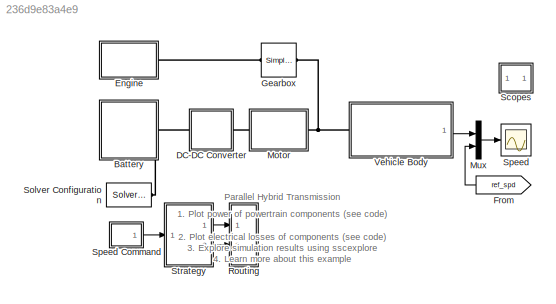
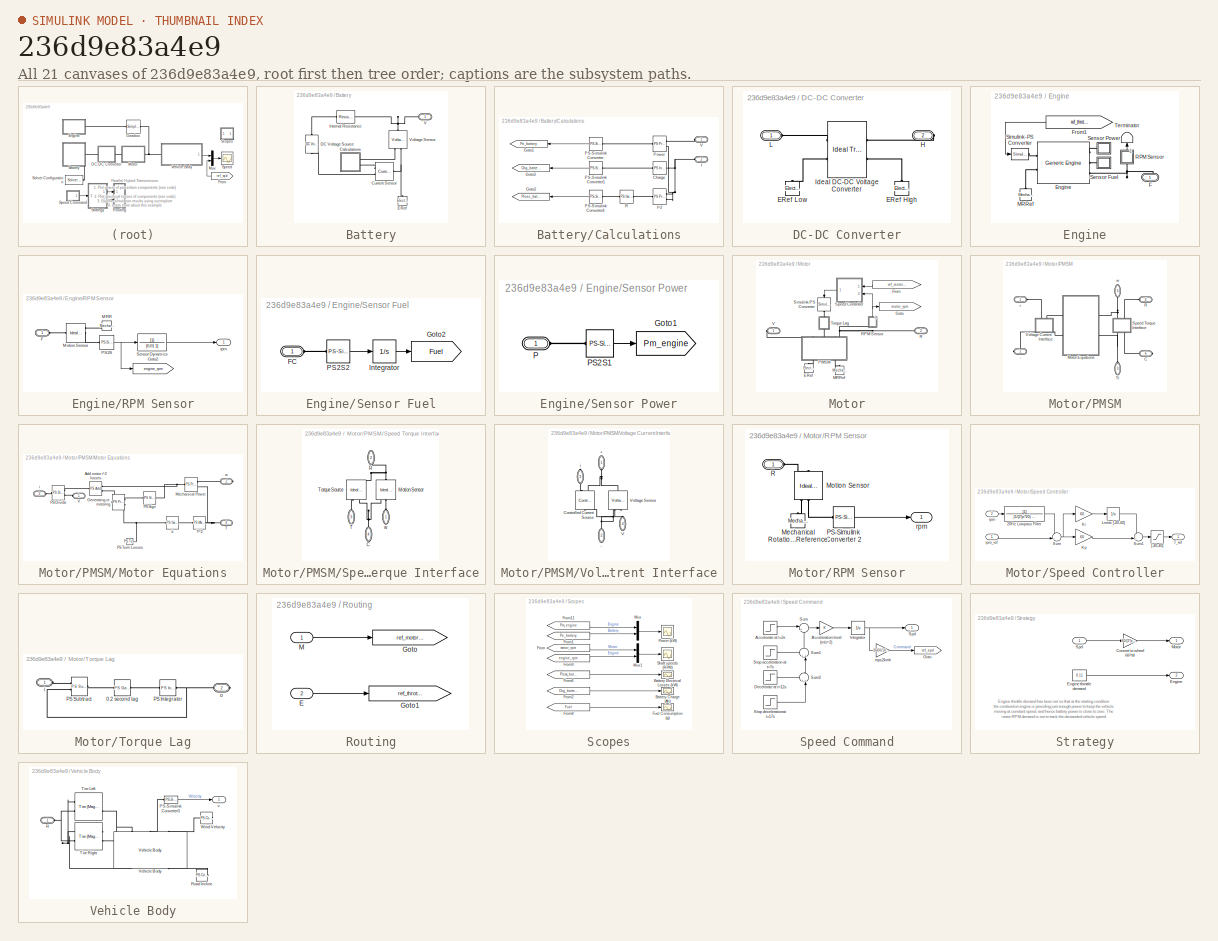
[diagram: thumbnail index - all 21 canvases of the model, root first then tree order]
MODEL slx_236d9e83a4e9
KIND model
CONFIG AbsTol = 1e-3
CONFIG EnableMultiTasking = on
CONFIG FixedStep = auto
CONFIG MaxStep = auto
CONFIG MinStep = auto
CONFIG RelTol = 1e-3
CONFIG SampleTimeConstraint = Unconstrained
CONFIG Solver = VariableStepAuto
CONFIG SolverName = VariableStepAuto
CONFIG StartTime = 0.0
CONFIG StopTime = 20
WORKSPACE source: MATLAB code (in-file)
WORKSPACE v0 = 15
WORKSPACE wheel_radius = 0.3
WORKSPACE k = 1e-2  (= 0.01)
WORKSPACE t_torque = 0.02
WORKSPACE gear_ratio = 4.27
BLOCK [SubSystem] Battery
  Ports = [0, 0, 0, 0, 0, 1]
  RequestExecContextInheritance = off
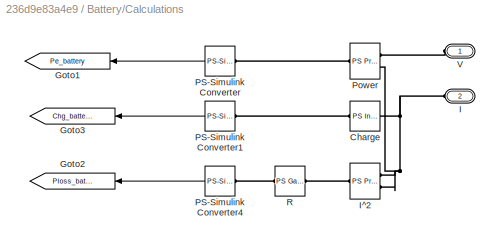
BLOCK [SubSystem] Battery/Calculations
  Ports = [0, 0, 0, 0, 0, 2]
  RequestExecContextInheritance = off
BLOCK [Reference] Battery/Calculations/Charge  REF=fl_lib/Physical Signals/Linear Operators/PS Integrator
  Ports = [0, 0, 0, 0, 0, 1, 1]
  SourceBlock = fl_lib/Physical Signals/Linear Operators/PS Integrator
  SourceProductBaseCode = SS
  SourceProductName = Simscape
  SourceType = PS Integrator
BLOCK [Goto] Battery/Calculations/Goto1
  GotoTag = Pe_battery
  TagVisibility = global
BLOCK [Goto] Battery/Calculations/Goto2
  GotoTag = Ploss_battery
  TagVisibility = global
BLOCK [Goto] Battery/Calculations/Goto3
  GotoTag = Chg_battery
  TagVisibility = global
BLOCK [PMIOPort] Battery/Calculations/I
  Port = 2
  Side = Left
BLOCK [Reference] Battery/Calculations/I^2  REF=fl_lib/Physical Signals/Functions/PS Product
  Ports = [0, 0, 0, 0, 0, 2, 1]
  SourceBlock = fl_lib/Physical Signals/Functions/PS Product
  SourceProductBaseCode = SS
  SourceProductName = Simscape
  SourceType = PS Product
BLOCK [Reference] Battery/Calculations/PS-Simulink Converter  REF=nesl_utility/PS-Simulink
Converter
  Ports = [0, 1, 0, 0, 0, 1]
  SourceBlock = nesl_utility/PS-Simulink\nConverter
  SourceProductBaseCode = SS
  SourceProductName = Simscape
  SourceType = PS-Simulink\nConverter
BLOCK [Reference] Battery/Calculations/PS-Simulink Converter1  REF=nesl_utility/PS-Simulink
Converter
  Ports = [0, 1, 0, 0, 0, 1]
  SourceBlock = nesl_utility/PS-Simulink\nConverter
  SourceProductBaseCode = SS
  SourceProductName = Simscape
  SourceType = PS-Simulink\nConverter
BLOCK [Reference] Battery/Calculations/PS-Simulink Converter4  REF=nesl_utility/PS-Simulink
Converter
  Ports = [0, 1, 0, 0, 0, 1]
  SourceBlock = nesl_utility/PS-Simulink\nConverter
  SourceProductBaseCode = SS
  SourceProductName = Simscape
  SourceType = PS-Simulink\nConverter
BLOCK [Reference] Battery/Calculations/Power  REF=fl_lib/Physical Signals/Functions/PS Product
  Ports = [0, 0, 0, 0, 0, 2, 1]
  SourceBlock = fl_lib/Physical Signals/Functions/PS Product
  SourceProductBaseCode = SS
  SourceProductName = Simscape
  SourceType = PS Product
BLOCK [Reference] Battery/Calculations/R  REF=fl_lib/Physical Signals/Functions/PS Gain
  Ports = [0, 0, 0, 0, 0, 1, 1]
  SourceBlock = fl_lib/Physical Signals/Functions/PS Gain
  SourceProductBaseCode = SS
  SourceProductName = Simscape
  SourceType = PS Gain
BLOCK [PMIOPort] Battery/Calculations/V
  Side = Left
BLOCK [Reference] Battery/Current Sensor  REF=fl_lib/Electrical/Electrical Sensors/Current Sensor
  Ports = [0, 0, 0, 0, 0, 1, 2]
  SourceBlock = fl_lib/Electrical/Electrical Sensors/Current Sensor
  SourceProductBaseCode = SS
  SourceProductName = Simscape
  SourceType = Current Sensor
BLOCK [Reference] Battery/DC Voltage Source  REF=fl_lib/Electrical/Electrical Sources/DC Voltage Source
  Ports = [0, 0, 0, 0, 0, 1, 1]
  SourceBlock = fl_lib/Electrical/Electrical Sources/DC Voltage Source
  SourceProductBaseCode = SS
  SourceProductName = Simscape
  SourceType = DC Voltage Source
BLOCK [Reference] Battery/ERef  REF=fl_lib/Electrical/Electrical Elements/Electrical Reference
  Ports = [0, 0, 0, 0, 0, 1]
  SourceBlock = fl_lib/Electrical/Electrical Elements/Electrical Reference
  SourceProductBaseCode = SS
  SourceProductName = Simscape
  SourceType = Electrical Reference
BLOCK [Reference] Battery/Internal Resistance  REF=fl_lib/Electrical/Electrical Elements/Resistor
  Ports = [0, 0, 0, 0, 0, 1, 1]
  SourceBlock = fl_lib/Electrical/Electrical Elements/Resistor
  SourceProductBaseCode = SS
  SourceProductName = Simscape
  SourceType = Resistor
BLOCK [PMIOPort] Battery/V
  Side = Left
BLOCK [Reference] Battery/Voltage Sensor  REF=fl_lib/Electrical/Electrical Sensors/Voltage Sensor
  Ports = [0, 0, 0, 0, 0, 1, 2]
  SourceBlock = fl_lib/Electrical/Electrical Sensors/Voltage Sensor
  SourceProductBaseCode = SS
  SourceProductName = Simscape
  SourceType = Voltage Sensor
BLOCK [SubSystem] DC-DC Converter
  Ports = [0, 0, 0, 0, 0, 1, 1]
  RequestExecContextInheritance = off
BLOCK [Reference] DC-DC Converter/ERef High  REF=fl_lib/Electrical/Electrical Elements/Electrical Reference
  Ports = [0, 0, 0, 0, 0, 1]
  SourceBlock = fl_lib/Electrical/Electrical Elements/Electrical Reference
  SourceProductBaseCode = SS
  SourceProductName = Simscape
  SourceType = Electrical Reference
BLOCK [Reference] DC-DC Converter/ERef Low  REF=fl_lib/Electrical/Electrical Elements/Electrical Reference
  Ports = [0, 0, 0, 0, 0, 1]
  SourceBlock = fl_lib/Electrical/Electrical Elements/Electrical Reference
  SourceProductBaseCode = SS
  SourceProductName = Simscape
  SourceType = Electrical Reference
BLOCK [PMIOPort] DC-DC Converter/H
  Port = 2
  Side = Right
BLOCK [Reference] DC-DC Converter/Ideal DC-DC Voltage Converter  REF=fl_lib/Electrical/Electrical Elements/Ideal Transformer
  Ports = [0, 0, 0, 0, 0, 2, 2]
  SourceBlock = fl_lib/Electrical/Electrical Elements/Ideal Transformer
  SourceProductBaseCode = SS
  SourceProductName = Simscape
  SourceType = Ideal Transformer
BLOCK [PMIOPort] DC-DC Converter/L
  Side = Left
  Tag = PMCPort
BLOCK [SubSystem] Engine
  Ports = [0, 0, 0, 0, 0, 0, 1]
  RequestExecContextInheritance = off
BLOCK [Reference] Engine/Engine  REF=sdl_lib/Engines/Generic Engine
  Ports = [0, 0, 0, 0, 0, 2, 3]
  SourceBlock = sdl_lib/Engines/Generic Engine
  SourceProductBaseCode = LD
  SourceProductName = Simscape Driveline
  SourceType = Generic Engine
BLOCK [PMIOPort] Engine/F
  Side = Right
BLOCK [From] Engine/From1
  GotoTag = ref_throttle
  TagVisibility = global
BLOCK [Reference] Engine/MRRef  REF=fl_lib/Mechanical/Rotational Elements/Mechanical
Rotational Reference
  Ports = [0, 0, 0, 0, 0, 1]
  SourceBlock = fl_lib/Mechanical/Rotational Elements/Mechanical\nRotational Reference
  SourceProductBaseCode = SS
  SourceProductName = Simscape
  SourceType = Mechanical\nRotational Reference
BLOCK [SubSystem] Engine/RPM Sensor
  Ports = [0, 1, 0, 0, 0, 1]
  RequestExecContextInheritance = off
BLOCK [PMIOPort] Engine/RPM Sensor/F
  Side = Left
BLOCK [Goto] Engine/RPM Sensor/Goto2
  GotoTag = engine_rpm
  TagVisibility = global
BLOCK [Reference] Engine/RPM Sensor/MRR  REF=fl_lib/Mechanical/Rotational Elements/Mechanical
Rotational Reference
  Ports = [0, 0, 0, 0, 0, 1]
  SourceBlock = fl_lib/Mechanical/Rotational Elements/Mechanical\nRotational Reference
  SourceProductBaseCode = SS
  SourceProductName = Simscape
  SourceType = Mechanical\nRotational Reference
BLOCK [Reference] Engine/RPM Sensor/Motion Sensor  REF=fl_lib/Mechanical/Mechanical Sensors/Ideal Rotational
Motion Sensor
  Ports = [0, 0, 0, 0, 0, 1, 3]
  SourceBlock = fl_lib/Mechanical/Mechanical Sensors/Ideal Rotational\nMotion Sensor
  SourceProductBaseCode = SS
  SourceProductName = Simscape
  SourceType = Ideal Rotational\nMotion Sensor
BLOCK [Reference] Engine/RPM Sensor/PS2S  REF=nesl_utility/PS-Simulink
Converter
  Ports = [0, 1, 0, 0, 0, 1]
  SourceBlock = nesl_utility/PS-Simulink\nConverter
  SourceProductBaseCode = SS
  SourceProductName = Simscape
  SourceType = PS-Simulink\nConverter
BLOCK [TransferFcn] Engine/RPM Sensor/Sensor Dynamics
  Denominator = [0.01 1]
BLOCK [Outport] Engine/RPM Sensor/rpm
  IconDisplay = Port number
  VectorParamsAs1DForOutWhenUnconnected = off
BLOCK [SubSystem] Engine/Sensor Fuel
  Ports = [0, 0, 0, 0, 0, 1]
  RequestExecContextInheritance = off
BLOCK [PMIOPort] Engine/Sensor Fuel/FC
  Side = Left
BLOCK [Goto] Engine/Sensor Fuel/Goto2
  GotoTag = Fuel
  TagVisibility = global
BLOCK [Integrator] Engine/Sensor Fuel/Integrator
  Ports = [1, 1]
BLOCK [Reference] Engine/Sensor Fuel/PS2S2  REF=nesl_utility/PS-Simulink
Converter
  Ports = [0, 1, 0, 0, 0, 1]
  SourceBlock = nesl_utility/PS-Simulink\nConverter
  SourceProductBaseCode = SS
  SourceProductName = Simscape
  SourceType = PS-Simulink\nConverter
BLOCK [SubSystem] Engine/Sensor Power
  Ports = [0, 0, 0, 0, 0, 1]
  RequestExecContextInheritance = off
BLOCK [Goto] Engine/Sensor Power/Goto1
  GotoTag = Pm_engine
  TagVisibility = global
BLOCK [PMIOPort] Engine/Sensor Power/P
  Side = Left
BLOCK [Reference] Engine/Sensor Power/PS2S1  REF=nesl_utility/PS-Simulink
Converter
  Ports = [0, 1, 0, 0, 0, 1]
  SourceBlock = nesl_utility/PS-Simulink\nConverter
  SourceProductBaseCode = SS
  SourceProductName = Simscape
  SourceType = PS-Simulink\nConverter
BLOCK [Reference] Engine/Simulink-PS Converter  REF=nesl_utility/Simulink-PS
Converter
  Ports = [1, 0, 0, 0, 0, 0, 1]
  SourceBlock = nesl_utility/Simulink-PS\nConverter
  SourceProductBaseCode = SS
  SourceProductName = Simscape
  SourceType = Simulink-PS\nConverter
BLOCK [Terminator] Engine/Terminator
BLOCK [From] From
  GotoTag = ref_spd
  TagVisibility = global
BLOCK [Reference] Gearbox  REF=sdl_lib/Gears/Simple Gear
  Ports = [0, 0, 0, 0, 0, 1, 1]
  SourceBlock = sdl_lib/Gears/Simple Gear
  SourceProductBaseCode = LD
  SourceProductName = Simscape Driveline
  SourceType = Simple Gear
BLOCK [SubSystem] Motor
  Ports = [0, 0, 0, 0, 0, 1, 1]
  RequestExecContextInheritance = off
BLOCK [Reference] Motor/ERef  REF=fl_lib/Electrical/Electrical Elements/Electrical Reference
  Ports = [0, 0, 0, 0, 0, 1]
  SourceBlock = fl_lib/Electrical/Electrical Elements/Electrical Reference
  SourceProductBaseCode = SS
  SourceProductName = Simscape
  SourceType = Electrical Reference
BLOCK [From] Motor/From
  GotoTag = ref_motor_rpm
  TagVisibility = global
BLOCK [Goto] Motor/Goto
  GotoTag = motor_rpm
  TagVisibility = global
BLOCK [Reference] Motor/MRRef  REF=fl_lib/Mechanical/Rotational Elements/Mechanical
Rotational Reference
  Ports = [0, 0, 0, 0, 0, 1]
  SourceBlock = fl_lib/Mechanical/Rotational Elements/Mechanical\nRotational Reference
  SourceProductBaseCode = SS
  SourceProductName = Simscape
  SourceType = Mechanical\nRotational Reference
BLOCK [SubSystem] Motor/PMSM
  Ports = [0, 0, 0, 0, 0, 3, 3]
  RequestExecContextInheritance = off
BLOCK [PMIOPort] Motor/PMSM/+
  Side = Left
BLOCK [PMIOPort] Motor/PMSM/-
  Port = 2
  Side = Right
BLOCK [PMIOPort] Motor/PMSM/C
  Port = 6
  Side = Right
BLOCK [SubSystem] Motor/PMSM/Motor Equations
  Ports = [0, 0, 0, 0, 0, 2, 2]
  RequestExecContextInheritance = off
BLOCK [Reference] Motor/PMSM/Motor Equations/Add motor i^2 losses  REF=fl_lib/Physical Signals/Functions/PS Add
  Ports = [0, 0, 0, 0, 0, 2, 1]
  SourceBlock = fl_lib/Physical Signals/Functions/PS Add
  SourceProductBaseCode = SS
  SourceProductName = Simscape
  SourceType = PS Add
BLOCK [Reference] Motor/PMSM/Motor Equations/Generating or motoring  REF=fl_lib/Physical Signals/Functions/PS Product
  Ports = [0, 0, 0, 0, 0, 2, 1]
  SourceBlock = fl_lib/Physical Signals/Functions/PS Product
  SourceProductBaseCode = SS
  SourceProductName = Simscape
  SourceType = PS Product
BLOCK [Reference] Motor/PMSM/Motor Equations/Mechanical Power  REF=fl_lib/Physical Signals/Functions/PS Product
  Ports = [0, 0, 0, 0, 0, 2, 1]
  SourceBlock = fl_lib/Physical Signals/Functions/PS Product
  SourceProductBaseCode = SS
  SourceProductName = Simscape
  SourceType = PS Product
BLOCK [Reference] Motor/PMSM/Motor Equations/PS Divide  REF=fl_lib/Physical Signals/Functions/PS Divide
  Ports = [0, 0, 0, 0, 0, 2, 1]
  SourceBlock = fl_lib/Physical Signals/Functions/PS Divide
  SourceProductBaseCode = SS
  SourceProductName = Simscape
  SourceType = PS Divide
BLOCK [Reference] Motor/PMSM/Motor Equations/PS Sign  REF=fl_lib/Physical Signals/Nonlinear Operators/PS Sign
  Ports = [0, 0, 0, 0, 0, 1, 1]
  SourceBlock = fl_lib/Physical Signals/Nonlinear Operators/PS Sign
  SourceProductBaseCode = SS
  SourceProductName = Simscape
  SourceType = PS Sign
BLOCK [Reference] Motor/PMSM/Motor Equations/PS Term Losses  REF=fl_lib/Physical Signals/Sinks/PS Terminator
  Ports = [0, 0, 0, 0, 0, 1]
  SourceBlock = fl_lib/Physical Signals/Sinks/PS Terminator
  SourceProductBaseCode = SS
  SourceProductName = Simscape
  SourceType = PS Terminator
BLOCK [PMIOPort] Motor/PMSM/Motor Equations/T
  Port = 4
  Side = Right
BLOCK [Reference] Motor/PMSM/Motor Equations/T^2  REF=fl_lib/Physical Signals/Functions/PS Math Function
  Ports = [0, 0, 0, 0, 0, 1, 1]
  SourceBlock = fl_lib/Physical Signals/Functions/PS Math Function
  SourceProductBaseCode = SS
  SourceProductName = Simscape
  SourceType = PS Math Function
BLOCK [PMIOPort] Motor/PMSM/Motor Equations/V
  Side = Left
BLOCK [PMIOPort] Motor/PMSM/Motor Equations/i
  Port = 3
  Side = Left
BLOCK [Reference] Motor/PMSM/Motor Equations/k  REF=fl_lib/Physical Signals/Functions/PS Gain
  Ports = [0, 0, 0, 0, 0, 1, 1]
  SourceBlock = fl_lib/Physical Signals/Functions/PS Gain
  SourceProductBaseCode = SS
  SourceProductName = Simscape
  SourceType = PS Gain
BLOCK [PMIOPort] Motor/PMSM/Motor Equations/w
  Port = 2
  Side = Right
BLOCK [PMIOPort] Motor/PMSM/R
  Port = 4
  Side = Left
BLOCK [SubSystem] Motor/PMSM/Speed Torque Interface
  Ports = [0, 0, 0, 0, 0, 2, 2]
  RequestExecContextInheritance = off
BLOCK [PMIOPort] Motor/PMSM/Speed Torque Interface/C
  Port = 4
  Side = Right
BLOCK [Reference] Motor/PMSM/Speed Torque Interface/Motion Sensor  REF=fl_lib/Mechanical/Mechanical Sensors/Ideal Rotational
Motion Sensor
  Ports = [0, 0, 0, 0, 0, 1, 3]
  SourceBlock = fl_lib/Mechanical/Mechanical Sensors/Ideal Rotational\nMotion Sensor
  SourceProductBaseCode = SS
  SourceProductName = Simscape
  SourceType = Ideal Rotational\nMotion Sensor
BLOCK [PMIOPort] Motor/PMSM/Speed Torque Interface/R
  Port = 2
  Side = Left
BLOCK [PMIOPort] Motor/PMSM/Speed Torque Interface/T
  Port = 3
  Side = Right
BLOCK [Reference] Motor/PMSM/Speed Torque Interface/Torque Source  REF=fl_lib/Mechanical/Mechanical Sources/Ideal Torque Source
  Ports = [0, 0, 0, 0, 0, 1, 2]
  SourceBlock = fl_lib/Mechanical/Mechanical Sources/Ideal Torque Source
  SourceProductBaseCode = SS
  SourceProductName = Simscape
  SourceType = Ideal Torque Source
BLOCK [PMIOPort] Motor/PMSM/Speed Torque Interface/w
  Side = Left
BLOCK [PMIOPort] Motor/PMSM/Tr
  Port = 3
  Side = Left
BLOCK [SubSystem] Motor/PMSM/Voltage Current Interface
  Ports = [0, 0, 0, 0, 0, 2, 2]
  RequestExecContextInheritance = off
BLOCK [PMIOPort] Motor/PMSM/Voltage Current Interface/+
  Side = Left
BLOCK [PMIOPort] Motor/PMSM/Voltage Current Interface/-
  Port = 2
  Side = Right
BLOCK [Reference] Motor/PMSM/Voltage Current Interface/Controlled Current Source  REF=fl_lib/Electrical/Electrical Sources/Controlled Current
Source
  Ports = [0, 0, 0, 0, 0, 1, 2]
  SourceBlock = fl_lib/Electrical/Electrical Sources/Controlled Current\nSource
  SourceProductBaseCode = SS
  SourceProductName = Simscape
  SourceType = Controlled Current\nSource
BLOCK [PMIOPort] Motor/PMSM/Voltage Current Interface/V
  Port = 4
  Side = Left
BLOCK [Reference] Motor/PMSM/Voltage Current Interface/Voltage Sensor  REF=fl_lib/Electrical/Electrical Sensors/Voltage Sensor
  Ports = [0, 0, 0, 0, 0, 1, 2]
  SourceBlock = fl_lib/Electrical/Electrical Sensors/Voltage Sensor
  SourceProductBaseCode = SS
  SourceProductName = Simscape
  SourceType = Voltage Sensor
BLOCK [PMIOPort] Motor/PMSM/Voltage Current Interface/i
  Port = 3
  Side = Right
BLOCK [PMIOPort] Motor/PMSM/w
  Port = 5
  Side = Right
BLOCK [PMIOPort] Motor/R
  Port = 2
  Side = Left
BLOCK [SubSystem] Motor/RPM Sensor
  Ports = [0, 1, 0, 0, 0, 1]
  RequestExecContextInheritance = off
BLOCK [Reference] Motor/RPM Sensor/Mechanical Rotational Reference  REF=fl_lib/Mechanical/Rotational Elements/Mechanical
Rotational Reference
  Ports = [0, 0, 0, 0, 0, 1]
  SourceBlock = fl_lib/Mechanical/Rotational Elements/Mechanical\nRotational Reference
  SourceProductBaseCode = SS
  SourceProductName = Simscape
  SourceType = Mechanical\nRotational Reference
BLOCK [Reference] Motor/RPM Sensor/Motion Sensor  REF=fl_lib/Mechanical/Mechanical Sensors/Ideal Rotational
Motion Sensor
  Ports = [0, 0, 0, 0, 0, 1, 3]
  SourceBlock = fl_lib/Mechanical/Mechanical Sensors/Ideal Rotational\nMotion Sensor
  SourceProductBaseCode = SS
  SourceProductName = Simscape
  SourceType = Ideal Rotational\nMotion Sensor
BLOCK [Reference] Motor/RPM Sensor/PS-Simulink Converter 2  REF=nesl_utility/PS-Simulink
Converter
  Ports = [0, 1, 0, 0, 0, 1]
  SourceBlock = nesl_utility/PS-Simulink\nConverter
  SourceProductBaseCode = SS
  SourceProductName = Simscape
  SourceType = PS-Simulink\nConverter
BLOCK [PMIOPort] Motor/RPM Sensor/R
  Side = Left
BLOCK [Outport] Motor/RPM Sensor/rpm
  IconDisplay = Port number
  VectorParamsAs1DForOutWhenUnconnected = off
BLOCK [Reference] Motor/Simulink-PS Converter  REF=nesl_utility/Simulink-PS
Converter
  Ports = [1, 0, 0, 0, 0, 0, 1]
  SourceBlock = nesl_utility/Simulink-PS\nConverter
  SourceProductBaseCode = SS
  SourceProductName = Simscape
  SourceType = Simulink-PS\nConverter
BLOCK [SubSystem] Motor/Speed Controller
  Ports = [2, 1]
  RequestExecContextInheritance = off
BLOCK [TransferFcn] Motor/Speed Controller/20Hz Lowpass Filter
  Denominator = [1/(2*pi*20) 1]
BLOCK [Gain] Motor/Speed Controller/Ki
  Gain = 60
  OutDataTypeStr = Inherit: Inherit via internal rule
  ParamDataTypeStr = Inherit: Inherit via internal rule
  SaturateOnIntegerOverflow = off
BLOCK [Gain] Motor/Speed Controller/Kp
  Gain = 60
  OutDataTypeStr = Inherit: Inherit via internal rule
  ParamDataTypeStr = Inherit: Inherit via internal rule
  SaturateOnIntegerOverflow = off
BLOCK [Integrator] Motor/Speed Controller/Limits [-40,40]
  LimitOutput = on
  LowerSaturationLimit = -40
  Ports = [1, 1]
  UpperSaturationLimit = 40
BLOCK [Sum] Motor/Speed Controller/Sum
  IconShape = round
  InputSameDT = off
  Inputs = -+|
  OutDataTypeStr = Inherit: Inherit via internal rule
  Ports = [2, 1]
  SaturateOnIntegerOverflow = off
BLOCK [Sum] Motor/Speed Controller/Sum1
  IconShape = round
  InputSameDT = off
  Inputs = ++|
  OutDataTypeStr = Inherit: Inherit via internal rule
  Ports = [2, 1]
  SaturateOnIntegerOverflow = off
BLOCK [Outport] Motor/Speed Controller/T_ref
  IconDisplay = Port number
  VectorParamsAs1DForOutWhenUnconnected = off
BLOCK [Saturate] Motor/Speed Controller/[-40,40]
  InputPortMap = u0
  LowerLimit = -400
  Ports = [1, 1]
  UpperLimit = 400
BLOCK [Inport] Motor/Speed Controller/rpm
  IconDisplay = Port number
  Port = 2
BLOCK [Inport] Motor/Speed Controller/rpm_ref
  IconDisplay = Port number
BLOCK [SubSystem] Motor/Torque Lag
  Ports = [0, 0, 0, 0, 0, 1, 1]
  RequestExecContextInheritance = off
BLOCK [Reference] Motor/Torque Lag/0.2 second lag  REF=fl_lib/Physical Signals/Functions/PS Gain
  Ports = [0, 0, 0, 0, 0, 1, 1]
  SourceBlock = fl_lib/Physical Signals/Functions/PS Gain
  SourceProductBaseCode = SS
  SourceProductName = Simscape
  SourceType = PS Gain
BLOCK [Reference] Motor/Torque Lag/PS Integrator  REF=fl_lib/Physical Signals/Linear Operators/PS Integrator
  Ports = [0, 0, 0, 0, 0, 1, 1]
  SourceBlock = fl_lib/Physical Signals/Linear Operators/PS Integrator
  SourceProductBaseCode = SS
  SourceProductName = Simscape
  SourceType = PS Integrator
BLOCK [Reference] Motor/Torque Lag/PS Subtract  REF=fl_lib/Physical Signals/Functions/PS Subtract
  Ports = [0, 0, 0, 0, 0, 2, 1]
  SourceBlock = fl_lib/Physical Signals/Functions/PS Subtract
  SourceProductBaseCode = SS
  SourceProductName = Simscape
  SourceType = PS Subtract
BLOCK [PMIOPort] Motor/Torque Lag/i
  Side = Left
BLOCK [PMIOPort] Motor/Torque Lag/o
  Port = 2
  Side = Right
BLOCK [PMIOPort] Motor/V
  Side = Right
BLOCK [Mux] Mux
  DisplayOption = bar
  Inputs = 2
  Ports = [2, 1]
BLOCK [SubSystem] Routing
  Ports = [2]
  RequestExecContextInheritance = off
BLOCK [Inport] Routing/E
  IconDisplay = Port number
  Port = 2
BLOCK [Goto] Routing/Goto
  GotoTag = ref_motor_rpm
  TagVisibility = global
BLOCK [Goto] Routing/Goto1
  GotoTag = ref_throttle
  TagVisibility = global
BLOCK [Inport] Routing/M
  IconDisplay = Port number
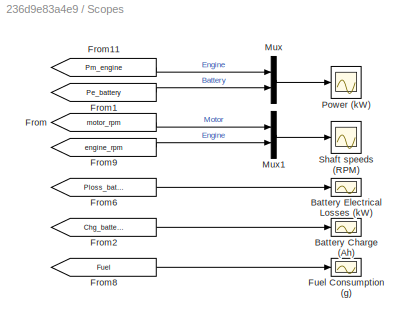
BLOCK [SubSystem] Scopes
  Ports = []
  RequestExecContextInheritance = off
BLOCK [Scope] Scopes/Battery Charge (Ah)
  Floating = off
  NumInputPorts = 1
  Ports = [1]
  ScopeSpecificationString = Simulink.scopes.TimeScopeBlockCfg('CurrentConfiguration', extmgr.ConfigurationSet(extmgr.Configuration('Core','General UI',true),extmgr.Configuration('Core','Source UI',true),extmgr.Configuration('Sources','WiredSimulink',true,'DataLoggingSaveFormat','StructureWithTime','DataLoggingLimitDataPoints',true,'DataLoggingDecimation','1','DataLoggingDecimateData',true,'DataLoggingVariableName','ScopeData...<+1783ch>
BLOCK [Scope] Scopes/Battery Electrical Losses (kW)
  Floating = off
  NumInputPorts = 1
  Ports = [1]
  ScopeSpecificationString = Simulink.scopes.TimeScopeBlockCfg('CurrentConfiguration', extmgr.ConfigurationSet(extmgr.Configuration('Core','General UI',true),extmgr.Configuration('Core','Source UI',true),extmgr.Configuration('Sources','WiredSimulink',true,'DataLoggingVariableName','ScopeData3','DataLoggingSaveFormat','StructureWithTime','DataLoggingMaxPoints','50000','DataLoggingLimitDataPoints',true,'DataLoggingDecimation','...<+1791ch>
BLOCK [From] Scopes/From
  GotoTag = motor_rpm
  TagVisibility = global
BLOCK [From] Scopes/From1
  GotoTag = Pe_battery
  TagVisibility = global
BLOCK [From] Scopes/From11
  GotoTag = Pm_engine
  TagVisibility = global
BLOCK [From] Scopes/From2
  GotoTag = Chg_battery
  TagVisibility = global
BLOCK [From] Scopes/From6
  GotoTag = Ploss_battery
  TagVisibility = global
BLOCK [From] Scopes/From8
  GotoTag = Fuel
  TagVisibility = global
BLOCK [From] Scopes/From9
  GotoTag = engine_rpm
  TagVisibility = global
BLOCK [Scope] Scopes/Fuel Consumption (g)
  Floating = off
  NumInputPorts = 1
  Ports = [1]
  ScopeSpecificationString = Simulink.scopes.TimeScopeBlockCfg('CurrentConfiguration', extmgr.ConfigurationSet(extmgr.Configuration('Core','General UI',true),extmgr.Configuration('Core','Source UI',true),extmgr.Configuration('Sources','WiredSimulink',true,'DataLoggingVariableName','ScopeData5','DataLoggingSaveFormat','StructureWithTime','DataLoggingMaxPoints','50000','DataLoggingLimitDataPoints',true,'DataLoggingDecimation','...<+1779ch>
BLOCK [Mux] Scopes/Mux
  DisplayOption = bar
  Inputs = 2
  Ports = [2, 1]
BLOCK [Mux] Scopes/Mux1
  DisplayOption = bar
  Inputs = 2
  Ports = [2, 1]
BLOCK [Scope] Scopes/Power (kW)
  Floating = off
  NumInputPorts = 1
  Ports = [1]
  ScopeSpecificationString = Simulink.scopes.TimeScopeBlockCfg('CurrentConfiguration', extmgr.ConfigurationSet(extmgr.Configuration('Core','General UI',true),extmgr.Configuration('Core','Source UI',true),extmgr.Configuration('Sources','WiredSimulink',true,'DataLoggingVariableName','ScopeData8','DataLoggingSaveFormat','StructureWithTime','DataLoggingMaxPoints','50000','DataLoggingLimitDataPoints',true,'DataLoggingDecimation','...<+1766ch>
BLOCK [Scope] Scopes/Shaft speeds (RPM)
  Floating = off
  NumInputPorts = 1
  Ports = [1]
  ScopeSpecificationString = Simulink.scopes.TimeScopeBlockCfg('CurrentConfiguration', extmgr.ConfigurationSet(extmgr.Configuration('Core','General UI',true),extmgr.Configuration('Core','Source UI',true),extmgr.Configuration('Sources','WiredSimulink',true,'DataLoggingVariableName','ScopeData1','DataLoggingSaveFormat','StructureWithTime','DataLoggingMaxPoints','50000','DataLoggingLimitDataPoints',true,'DataLoggingDecimation','...<+1754ch>
BLOCK [Reference] Solver Configuration  REF=nesl_utility/Solver
Configuration
  Ports = [0, 0, 0, 0, 0, 0, 1]
  SourceBlock = nesl_utility/Solver\nConfiguration
  SourceProductBaseCode = SS
  SourceProductName = Simscape
  SourceType = Solver\nConfiguration
BLOCK [Scope] Speed
  Floating = off
  NumInputPorts = 1
  Ports = [1]
  ScopeSpecificationString = Simulink.scopes.TimeScopeBlockCfg('CurrentConfiguration', extmgr.ConfigurationSet(extmgr.Configuration('Core','General UI',true),extmgr.Configuration('Core','Source UI',true),extmgr.Configuration('Sources','WiredSimulink',true,'DataLoggingSaveFormat','StructureWithTime','DataLoggingMaxPoints','50000','DataLoggingLimitDataPoints',true,'DataLoggingDecimation','1','DataLoggingDecimateData',true),extm...<+1926ch>
BLOCK [SubSystem] Speed Command
  Ports = [0, 1]
  RequestExecContextInheritance = off
BLOCK [Step] Speed Command/Accelerate at t=2s
  SampleTime = 0
  Time = 2
BLOCK [Gain] Speed Command/Acceleration level (m//s^2)
  OutDataTypeStr = Inherit: Inherit via internal rule
  ParamDataTypeStr = Inherit: Inherit via internal rule
  SaturateOnIntegerOverflow = off
BLOCK [Step] Speed Command/Decelerate at t=12s
  After = -1
  SampleTime = 0
  Time = 12
BLOCK [Goto] Speed Command/Goto
  GotoTag = ref_spd
  TagVisibility = global
BLOCK [Integrator] Speed Command/Integrator
  InitialCondition = v0
  Ports = [1, 1]
BLOCK [Outport] Speed Command/Spd
  IconDisplay = Port number
  VectorParamsAs1DForOutWhenUnconnected = off
BLOCK [Step] Speed Command/Stop acceleration at t=7s
  After = -1
  SampleTime = 0
  Time = 7
BLOCK [Step] Speed Command/Stop decelerationat t=17s
  SampleTime = 0
  Time = 17
BLOCK [Sum] Speed Command/Sum
  IconShape = round
  InputSameDT = off
  Inputs = |++
  OutDataTypeStr = Inherit: Inherit via internal rule
  Ports = [2, 1]
  SaturateOnIntegerOverflow = off
BLOCK [Sum] Speed Command/Sum1
  IconShape = round
  InputSameDT = off
  Inputs = ++|
  OutDataTypeStr = Inherit: Inherit via internal rule
  Ports = [2, 1]
  SaturateOnIntegerOverflow = off
BLOCK [Sum] Speed Command/Sum2
  IconShape = round
  InputSameDT = off
  Inputs = ++|
  OutDataTypeStr = Inherit: Inherit via internal rule
  Ports = [2, 1]
  SaturateOnIntegerOverflow = off
BLOCK [Gain] Speed Command/mps2kmh
  Gain = 3600/1000
  OutDataTypeStr = Inherit: Inherit via internal rule
  ParamDataTypeStr = Inherit: Inherit via internal rule
  SaturateOnIntegerOverflow = off
BLOCK [SubSystem] Strategy
  Ports = [1, 2]
  RequestExecContextInheritance = off
BLOCK [Gain] Strategy/Convert to wheel RPM
  Gain = 60/(2*pi)/wheel_radius
  OutDataTypeStr = Inherit: Inherit via internal rule
  ParamDataTypeStr = Inherit: Inherit via internal rule
  SaturateOnIntegerOverflow = off
BLOCK [Outport] Strategy/Engine
  IconDisplay = Port number
  Port = 2
  VectorParamsAs1DForOutWhenUnconnected = off
BLOCK [Constant] Strategy/Engine throttle demand
  Value = 0.11
BLOCK [Outport] Strategy/Motor
  IconDisplay = Port number
  VectorParamsAs1DForOutWhenUnconnected = off
BLOCK [Inport] Strategy/Spd
  IconDisplay = Port number
BLOCK [SubSystem] Vehicle Body
  Ports = [0, 1, 0, 0, 0, 1]
  RequestExecContextInheritance = off
BLOCK [Reference] Vehicle Body/PS-Simulink Converter3  REF=nesl_utility/PS-Simulink
Converter
  Ports = [0, 1, 0, 0, 0, 1]
  SourceBlock = nesl_utility/PS-Simulink\nConverter
  SourceProductBaseCode = SS
  SourceProductName = Simscape
  SourceType = PS-Simulink\nConverter
BLOCK [PMIOPort] Vehicle Body/R
  Side = Left
BLOCK [Reference] Vehicle Body/Road Incline  REF=fl_lib/Physical Signals/Sources/PS Constant
  Ports = [0, 0, 0, 0, 0, 0, 1]
  SourceBlock = fl_lib/Physical Signals/Sources/PS Constant
  SourceProductBaseCode = SS
  SourceProductName = Simscape
  SourceType = PS Constant
BLOCK [Reference] Vehicle Body/Tire Left  REF=sdl_lib/Tires & Vehicles/Tire (Magic Formula)
  Ports = [0, 0, 0, 0, 0, 2, 2]
  SourceBlock = sdl_lib/Tires & Vehicles/Tire (Magic Formula)
  SourceProductBaseCode = LD
  SourceProductName = Simscape Driveline
  SourceType = Tire (Magic Formula)
BLOCK [Reference] Vehicle Body/Tire Right  REF=sdl_lib/Tires & Vehicles/Tire (Magic Formula)
  Ports = [0, 0, 0, 0, 0, 2, 2]
  SourceBlock = sdl_lib/Tires & Vehicles/Tire (Magic Formula)
  SourceProductBaseCode = LD
  SourceProductName = Simscape Driveline
  SourceType = Tire (Magic Formula)
BLOCK [Reference] Vehicle Body/Vehicle Body  REF=sdl_lib/Tires & Vehicles/Vehicle Body
  Ports = [0, 0, 0, 0, 0, 3, 3]
  SourceBlock = sdl_lib/Tires & Vehicles/Vehicle Body
  SourceProductBaseCode = LD
  SourceProductName = Simscape Driveline
  SourceType = Vehicle Body
BLOCK [Reference] Vehicle Body/Wind Velocity  REF=fl_lib/Physical Signals/Sources/PS Constant
  Ports = [0, 0, 0, 0, 0, 0, 1]
  SourceBlock = fl_lib/Physical Signals/Sources/PS Constant
  SourceProductBaseCode = SS
  SourceProductName = Simscape
  SourceType = PS Constant
BLOCK [Outport] Vehicle Body/v
  IconDisplay = Port number
  VectorParamsAs1DForOutWhenUnconnected = off
ANNOTATION (root): 1. Plot power of powertrain components ( see code ) 2. Plot electrical losses of components ( see code ) 3. Explore simulation results using sscexplore 4. Learn more about this example
ANNOTATION (root): Parallel Hybrid Transmission
ANNOTATION Strategy: Engine throttle demand has been set so that at the starting condition the combustion engine is providing just enough power to keep the vehicle moving at constant speed, and hence battery power is close to zero. The motor RPM demand is set to track the demanded vehicle speed.
LINE Battery/Calculations/PS-Simulink Converter1:1 -> Battery/Calculations/Goto3:1
LINE Battery/Calculations/PS-Simulink Converter4:1 -> Battery/Calculations/Goto2:1
LINE Battery/Calculations/PS-Simulink Converter:1 -> Battery/Calculations/Goto1:1
LINE Engine/From1:1 -> Engine/Simulink-PS Converter:1
NET Engine/RPM Sensor/PS2S:1 -> Engine/RPM Sensor/Goto2:1, Engine/RPM Sensor/Sensor Dynamics:1
LINE Engine/RPM Sensor/Sensor Dynamics:1 -> Engine/RPM Sensor/rpm:1
LINE Engine/RPM Sensor:1 -> Engine/Terminator:1
LINE Engine/Sensor Fuel/Integrator:1 -> Engine/Sensor Fuel/Goto2:1
LINE Engine/Sensor Fuel/PS2S2:1 -> Engine/Sensor Fuel/Integrator:1
LINE Engine/Sensor Power/PS2S1:1 -> Engine/Sensor Power/Goto1:1
LINE From:1 -> Mux:2
LINE Motor/From:1 -> Motor/Speed Controller:1
LINE Motor/RPM Sensor/PS-Simulink Converter 2:1 -> Motor/RPM Sensor/rpm:1
NET Motor/RPM Sensor:1 -> Motor/Goto:1, Motor/Speed Controller:2
LINE Motor/Speed Controller/20Hz Lowpass Filter:1 -> Motor/Speed Controller/Sum:1
LINE Motor/Speed Controller/Ki:1 -> Motor/Speed Controller/Limits [-40,40]:1
LINE Motor/Speed Controller/Kp:1 -> Motor/Speed Controller/Sum1:2
LINE Motor/Speed Controller/Limits [-40,40]:1 -> Motor/Speed Controller/Sum1:1
LINE Motor/Speed Controller/Sum1:1 -> Motor/Speed Controller/[-40,40]:1
NET Motor/Speed Controller/Sum:1 -> Motor/Speed Controller/Ki:1, Motor/Speed Controller/Kp:1
LINE Motor/Speed Controller/[-40,40]:1 -> Motor/Speed Controller/T_ref:1
LINE Motor/Speed Controller/rpm:1 -> Motor/Speed Controller/20Hz Lowpass Filter:1
LINE Motor/Speed Controller/rpm_ref:1 -> Motor/Speed Controller/Sum:2
LINE Motor/Speed Controller:1 -> Motor/Simulink-PS Converter:1
LINE Mux:1 -> Speed:1
LINE Routing/E:1 -> Routing/Goto1:1
LINE Routing/M:1 -> Routing/Goto:1
LINE Scopes/From11:1 -> Scopes/Mux:1
LINE Scopes/From1:1 -> Scopes/Mux:2
LINE Scopes/From2:1 -> Scopes/Battery Charge (Ah):1
LINE Scopes/From6:1 -> Scopes/Battery Electrical Losses (kW):1
LINE Scopes/From8:1 -> Scopes/Fuel Consumption (g):1
LINE Scopes/From9:1 -> Scopes/Mux1:2
LINE Scopes/From:1 -> Scopes/Mux1:1
LINE Scopes/Mux1:1 -> Scopes/Shaft speeds (RPM):1
LINE Scopes/Mux:1 -> Scopes/Power (kW):1
LINE Speed Command/Accelerate at t=2s:1 -> Speed Command/Sum:1
LINE Speed Command/Acceleration level (m//s^2):1 -> Speed Command/Integrator:1
LINE Speed Command/Decelerate at t=12s:1 -> Speed Command/Sum2:1
NET Speed Command/Integrator:1 -> Speed Command/Spd:1, Speed Command/mps2kmh:1
LINE Speed Command/Stop acceleration at t=7s:1 -> Speed Command/Sum1:1
LINE Speed Command/Stop decelerationat t=17s:1 -> Speed Command/Sum2:2
LINE Speed Command/Sum1:1 -> Speed Command/Sum:2
LINE Speed Command/Sum2:1 -> Speed Command/Sum1:2
LINE Speed Command/Sum:1 -> Speed Command/Acceleration level (m//s^2):1
LINE Speed Command/mps2kmh:1 -> Speed Command/Goto:1
LINE Speed Command:1 -> Strategy:1
LINE Strategy/Convert to wheel RPM:1 -> Strategy/Motor:1
LINE Strategy/Engine throttle demand:1 -> Strategy/Engine:1
LINE Strategy/Spd:1 -> Strategy/Convert to wheel RPM:1
LINE Strategy:1 -> Routing:1
LINE Strategy:2 -> Routing:2
LINE Vehicle Body/PS-Simulink Converter3:1 -> Vehicle Body/v:1
LINE Vehicle Body:1 -> Mux:1
PNET net1: Battery/Calculations/Charge:LConn1 -- Battery/Calculations/I:RConn1 -- Battery/Calculations/I^2:LConn1 -- Battery/Calculations/I^2:LConn2 -- Battery/Calculations/Power:LConn2
PLINE Battery/Calculations/Charge:RConn1 -- Battery/Calculations/PS-Simulink Converter1:LConn1
PLINE Battery/Calculations/I^2:RConn1 -- Battery/Calculations/R:LConn1
PLINE Battery/Calculations/PS-Simulink Converter4:LConn1 -- Battery/Calculations/R:RConn1
PLINE Battery/Calculations/PS-Simulink Converter:LConn1 -- Battery/Calculations/Power:RConn1
PLINE Battery/Calculations/Power:LConn1 -- Battery/Calculations/V:RConn1
PLINE Battery/Calculations:LConn1 -- Battery/Voltage Sensor:RConn1
PLINE Battery/Calculations:LConn2 -- Battery/Current Sensor:RConn1
PNET net2: Battery/Current Sensor:LConn1 -- Battery/ERef:LConn1 -- Battery/Voltage Sensor:RConn2
PLINE Battery/Current Sensor:RConn2 -- Battery/DC Voltage Source:RConn1
PLINE Battery/DC Voltage Source:LConn1 -- Battery/Internal Resistance:LConn1
PNET net3: Battery/Internal Resistance:RConn1 -- Battery/V:RConn1 -- Battery/Voltage Sensor:LConn1
PNET net4: Battery:LConn1 -- DC-DC Converter:LConn1 -- Solver Configuration:RConn1
PLINE DC-DC Converter/ERef High:LConn1 -- DC-DC Converter/Ideal DC-DC Voltage Converter:RConn2
PLINE DC-DC Converter/ERef Low:LConn1 -- DC-DC Converter/Ideal DC-DC Voltage Converter:LConn2
PLINE DC-DC Converter/H:RConn1 -- DC-DC Converter/Ideal DC-DC Voltage Converter:RConn1
PLINE DC-DC Converter/Ideal DC-DC Voltage Converter:LConn1 -- DC-DC Converter/L:RConn1
PLINE DC-DC Converter:RConn1 -- Motor:RConn1
PLINE Engine/Engine:LConn1 -- Engine/Simulink-PS Converter:RConn1
PLINE Engine/Engine:LConn2 -- Engine/MRRef:LConn1
PLINE Engine/Engine:RConn1 -- Engine/Sensor Power:LConn1
PLINE Engine/Engine:RConn2 -- Engine/Sensor Fuel:LConn1
PNET net5: Engine/Engine:RConn3 -- Engine/F:RConn1 -- Engine/RPM Sensor:LConn1
PLINE Engine/RPM Sensor/F:RConn1 -- Engine/RPM Sensor/Motion Sensor:LConn1
PLINE Engine/RPM Sensor/MRR:LConn1 -- Engine/RPM Sensor/Motion Sensor:RConn1
PLINE Engine/RPM Sensor/Motion Sensor:RConn2 -- Engine/RPM Sensor/PS2S:LConn1
PLINE Engine/Sensor Fuel/FC:RConn1 -- Engine/Sensor Fuel/PS2S2:LConn1
PLINE Engine/Sensor Power/P:RConn1 -- Engine/Sensor Power/PS2S1:LConn1
PLINE Engine:RConn1 -- Gearbox:LConn1
PNET net6: Gearbox:RConn1 -- Motor:LConn1 -- Vehicle Body:LConn1
PLINE Motor/ERef:LConn1 -- Motor/PMSM:RConn1
PLINE Motor/MRRef:LConn1 -- Motor/PMSM:RConn3
PLINE Motor/PMSM/+:RConn1 -- Motor/PMSM/Voltage Current Interface:LConn1
PLINE Motor/PMSM/-:RConn1 -- Motor/PMSM/Voltage Current Interface:RConn1
PLINE Motor/PMSM/C:RConn1 -- Motor/PMSM/Speed Torque Interface:RConn2
PNET net7: Motor/PMSM/Motor Equations/Add motor i^2 losses:LConn1 -- Motor/PMSM/Motor Equations/Mechanical Power:RConn1 -- Motor/PMSM/Motor Equations/PS Sign:LConn1
PLINE Motor/PMSM/Motor Equations/Add motor i^2 losses:LConn2 -- Motor/PMSM/Motor Equations/Generating or motoring:RConn1
PLINE Motor/PMSM/Motor Equations/Add motor i^2 losses:RConn1 -- Motor/PMSM/Motor Equations/PS Divide:LConn1
PLINE Motor/PMSM/Motor Equations/Generating or motoring:LConn1 -- Motor/PMSM/Motor Equations/PS Sign:RConn1
PNET net8: Motor/PMSM/Motor Equations/Generating or motoring:LConn2 -- Motor/PMSM/Motor Equations/PS Term Losses:LConn1 -- Motor/PMSM/Motor Equations/k:RConn1
PLINE Motor/PMSM/Motor Equations/Mechanical Power:LConn1 -- Motor/PMSM/Motor Equations/w:RConn1
PNET net9: Motor/PMSM/Motor Equations/Mechanical Power:LConn2 -- Motor/PMSM/Motor Equations/T:RConn1 -- Motor/PMSM/Motor Equations/T^2:LConn1
PLINE Motor/PMSM/Motor Equations/PS Divide:LConn2 -- Motor/PMSM/Motor Equations/V:RConn1
PLINE Motor/PMSM/Motor Equations/PS Divide:RConn1 -- Motor/PMSM/Motor Equations/i:RConn1
PLINE Motor/PMSM/Motor Equations/T^2:RConn1 -- Motor/PMSM/Motor Equations/k:LConn1
PLINE Motor/PMSM/Motor Equations:LConn1 -- Motor/PMSM/Voltage Current Interface:LConn2
PLINE Motor/PMSM/Motor Equations:LConn2 -- Motor/PMSM/Voltage Current Interface:RConn2
PNET net10: Motor/PMSM/Motor Equations:RConn1 -- Motor/PMSM/Speed Torque Interface:LConn1 -- Motor/PMSM/w:RConn1
PNET net11: Motor/PMSM/Motor Equations:RConn2 -- Motor/PMSM/Speed Torque Interface:RConn1 -- Motor/PMSM/Tr:RConn1
PLINE Motor/PMSM/R:RConn1 -- Motor/PMSM/Speed Torque Interface:LConn2
PNET net12: Motor/PMSM/Speed Torque Interface/C:RConn1 -- Motor/PMSM/Speed Torque Interface/Motion Sensor:RConn1 -- Motor/PMSM/Speed Torque Interface/Torque Source:RConn2
PNET net13: Motor/PMSM/Speed Torque Interface/Motion Sensor:LConn1 -- Motor/PMSM/Speed Torque Interface/R:RConn1 -- Motor/PMSM/Speed Torque Interface/Torque Source:LConn1
PLINE Motor/PMSM/Speed Torque Interface/Motion Sensor:RConn2 -- Motor/PMSM/Speed Torque Interface/w:RConn1
PLINE Motor/PMSM/Speed Torque Interface/T:RConn1 -- Motor/PMSM/Speed Torque Interface/Torque Source:RConn1
PNET net14: Motor/PMSM/Voltage Current Interface/+:RConn1 -- Motor/PMSM/Voltage Current Interface/Controlled Current Source:RConn2 -- Motor/PMSM/Voltage Current Interface/Voltage Sensor:LConn1
PNET net15: Motor/PMSM/Voltage Current Interface/-:RConn1 -- Motor/PMSM/Voltage Current Interface/Controlled Current Source:LConn1 -- Motor/PMSM/Voltage Current Interface/Voltage Sensor:RConn2
PLINE Motor/PMSM/Voltage Current Interface/Controlled Current Source:RConn1 -- Motor/PMSM/Voltage Current Interface/i:RConn1
PLINE Motor/PMSM/Voltage Current Interface/V:RConn1 -- Motor/PMSM/Voltage Current Interface/Voltage Sensor:RConn1
PLINE Motor/PMSM:LConn1 -- Motor/V:RConn1
PLINE Motor/PMSM:LConn2 -- Motor/Torque Lag:RConn1
PNET net16: Motor/PMSM:LConn3 -- Motor/R:RConn1 -- Motor/RPM Sensor:LConn1
PLINE Motor/RPM Sensor/Mechanical Rotational Reference:LConn1 -- Motor/RPM Sensor/Motion Sensor:RConn1
PLINE Motor/RPM Sensor/Motion Sensor:LConn1 -- Motor/RPM Sensor/R:RConn1
PLINE Motor/RPM Sensor/Motion Sensor:RConn2 -- Motor/RPM Sensor/PS-Simulink Converter 2:LConn1
PLINE Motor/Simulink-PS Converter:RConn1 -- Motor/Torque Lag:LConn1
PLINE Motor/Torque Lag/0.2 second lag:LConn1 -- Motor/Torque Lag/PS Subtract:RConn1
PLINE Motor/Torque Lag/0.2 second lag:RConn1 -- Motor/Torque Lag/PS Integrator:LConn1
PNET net17: Motor/Torque Lag/PS Integrator:RConn1 -- Motor/Torque Lag/PS Subtract:LConn2 -- Motor/Torque Lag/o:RConn1
PLINE Motor/Torque Lag/PS Subtract:LConn1 -- Motor/Torque Lag/i:RConn1
PLINE Vehicle Body/PS-Simulink Converter3:LConn1 -- Vehicle Body/Vehicle Body:LConn2
PNET net18: Vehicle Body/R:RConn1 -- Vehicle Body/Tire Left:LConn2 -- Vehicle Body/Tire Right:LConn2
PLINE Vehicle Body/Road Incline:RConn1 -- Vehicle Body/Vehicle Body:RConn3
PNET net19: Vehicle Body/Tire Left:LConn1 -- Vehicle Body/Tire Right:LConn1 -- Vehicle Body/Vehicle Body:RConn1
PNET net20: Vehicle Body/Tire Left:RConn2 -- Vehicle Body/Tire Right:RConn2 -- Vehicle Body/Vehicle Body:LConn1
PLINE Vehicle Body/Vehicle Body:LConn3 -- Vehicle Body/Wind Velocity:RConn1
note: NET lines group one-source signal fan-out (src -> all destinations, sorted); 1:1 wires keep LINE; PNET lines group multi-terminal physical nets as a canonical sorted terminal list (undirected conserving connections); 2-terminal nets keep the pairwise PLINE form
